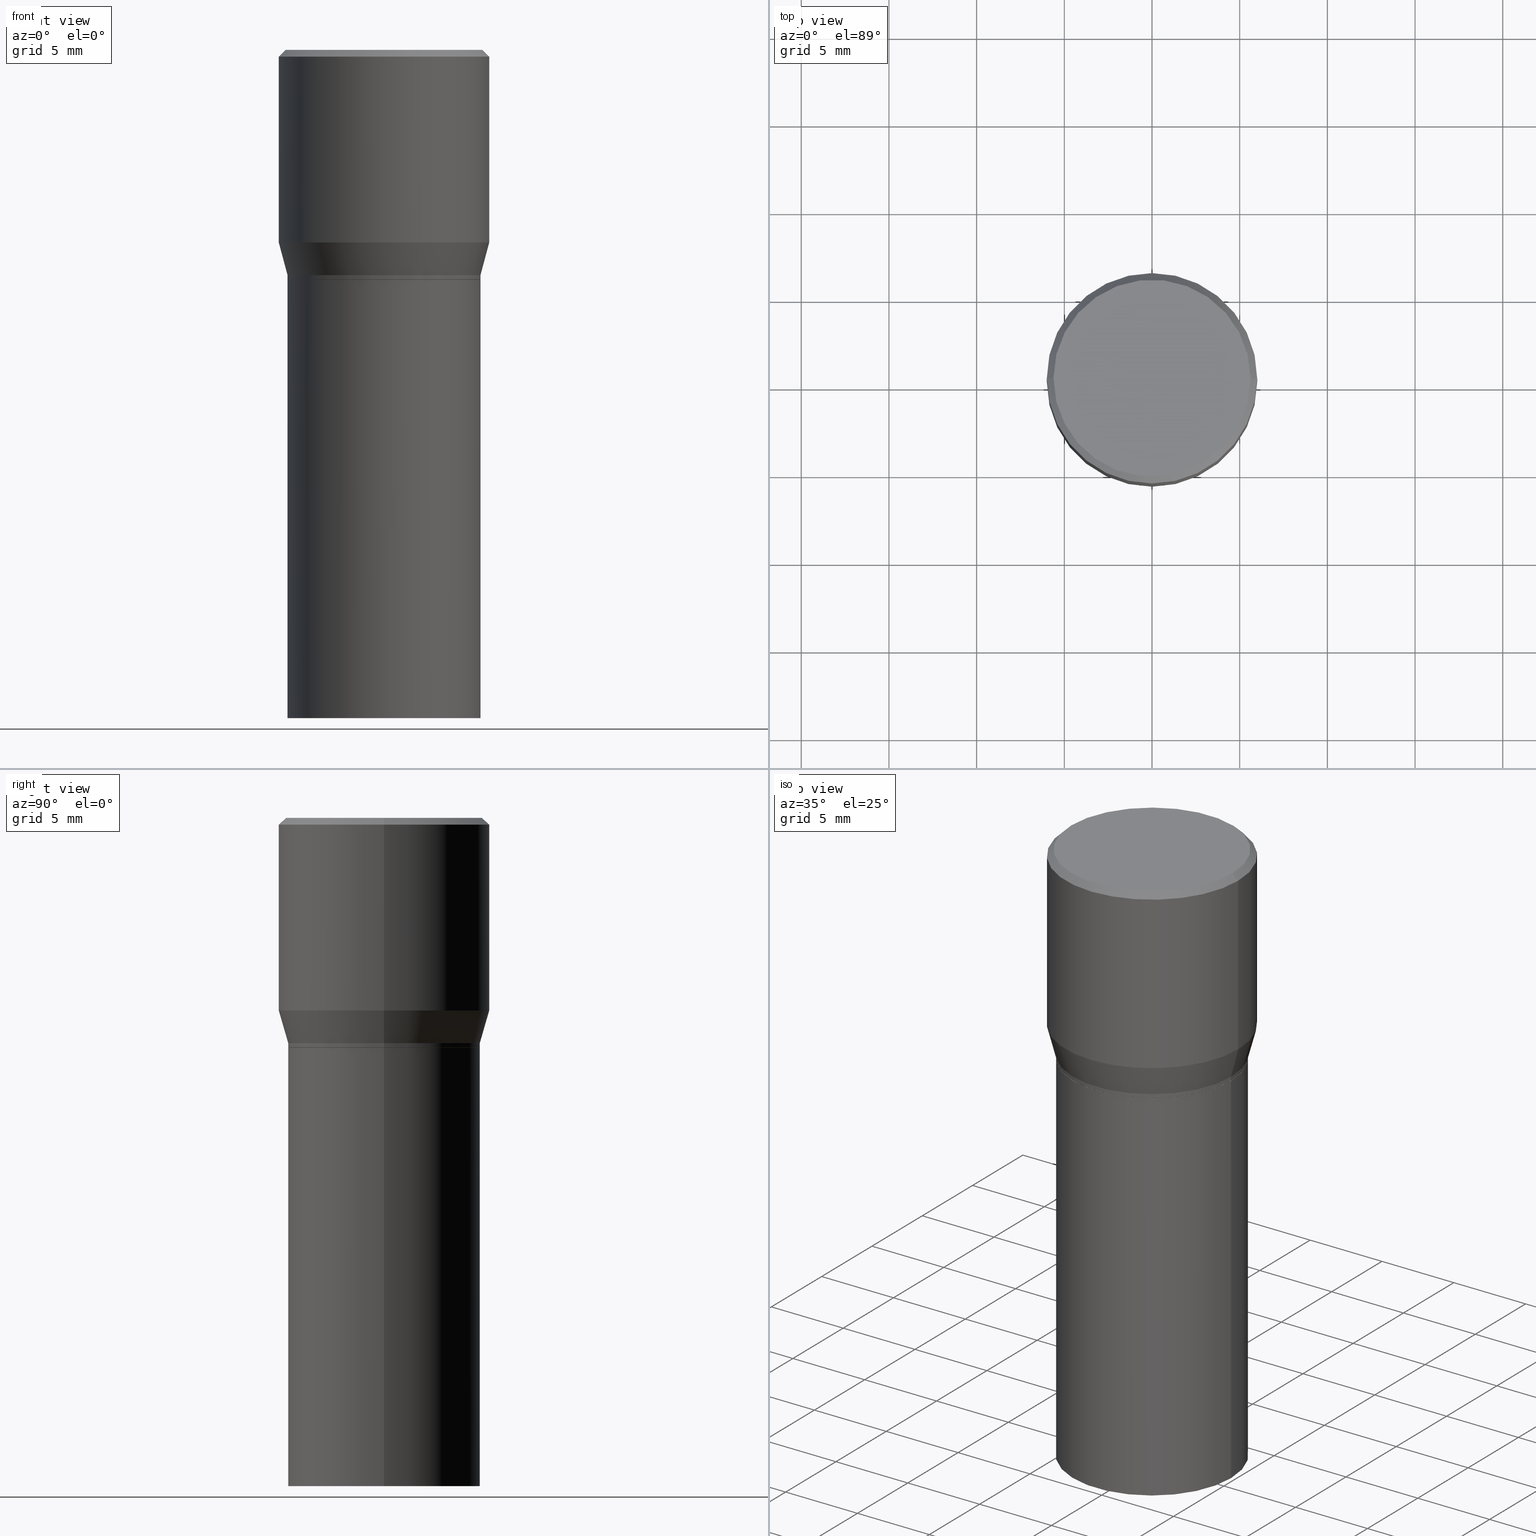
[diagram: canonical four-view strip — front | top / right | iso, engineering-drawing reading convention]
A machine part, canonical four-view strip (front | top / right | iso — engineering-drawing reading convention). The complete STEP part file that produces these views, byte-faithful:
ISO-10303-21;
HEADER;
FILE_DESCRIPTION (( 'STEP AP203' ),
    '1' );
FILE_NAME ('48536.STEP',
    '2024-03-12T19:31:03',
    ( '' ),
    ( '' ),
    'SwSTEP 2.0',
    'SolidWorks 2023',
    '' );
FILE_SCHEMA (( 'CONFIG_CONTROL_DESIGN' ));
ENDSEC;

DATA;
#1 = CARTESIAN_POINT ( 'NONE',  ( 1.544631344304202170E-15, 0.2212000000000000077, -7.488084343291421542E-16 ) ) ;
#2 = AXIS2_PLACEMENT_3D ( 'NONE', #158, #240, #56 ) ;
#3 = DATE_AND_TIME ( #423, #302 ) ;
#4 = PERSON_AND_ORGANIZATION ( #401, #276 ) ;
#5 = EDGE_CURVE ( 'NONE', #81, #404, #165, .T. ) ;
#6 = ORIENTED_EDGE ( 'NONE', *, *, #303, .T. ) ;
#7 = DIRECTION ( 'NONE',  ( 1.000000000000000000, -6.982962677686266711E-15, 4.876176775795936353E-29 ) ) ;
#8 = ADVANCED_FACE ( 'NONE', ( #192 ), #10, .T. ) ;
#9 = COORDINATED_UNIVERSAL_TIME_OFFSET ( 5, 0, .BEHIND. ) ;
#10 = CYLINDRICAL_SURFACE ( 'NONE', #314, 0.2165500000000000480 ) ;
#11 = CARTESIAN_POINT ( 'NONE',  ( -0.2165500000000000480, 1.538680294288497294E-15, -1.065195393794700063E-29 ) ) ;
#12 = DIRECTION ( 'NONE',  ( 0.2588190451025206840, 1.565188264969626504E-15, 0.9659258262890682012 ) ) ;
#13 = DIRECTION ( 'NONE',  ( -2.445468806185136597E-29, 3.491481338843145583E-15, 1.000000000000000000 ) ) ;
#14 = ORIENTED_EDGE ( 'NONE', *, *, #260, .T. ) ;
#15 = DIRECTION ( 'NONE',  ( 2.445468806185136597E-29, -3.491481338843145583E-15, -1.000000000000000000 ) ) ;
#16 = CC_DESIGN_SECURITY_CLASSIFICATION ( #364, ( #333 ) ) ;
#17 = DIRECTION ( 'NONE',  ( 1.000000000000000000, -6.982962677686267499E-15, 0.000000000000000000 ) ) ;
#18 = EDGE_CURVE ( 'NONE', #411, #199, #380, .T. ) ;
#19 = ORIENTED_EDGE ( 'NONE', *, *, #446, .T. ) ;
#20 = CARTESIAN_POINT ( 'NONE',  ( 0.2361999999999999933, -3.158970817530236235E-15, -0.4323652016312719004 ) ) ;
#21 = CARTESIAN_POINT ( 'NONE',  ( 0.2165500000000000203, -3.310971753624950675E-15, -0.5152000000000002133 ) ) ;
#22 = CARTESIAN_POINT ( 'NONE',  ( 0.2165500000000000480, -3.277802680905940530E-15, -0.5057000000000001494 ) ) ;
#23 = VERTEX_POINT ( 'NONE', #75 ) ;
#24 = CARTESIAN_POINT ( 'NONE',  ( 0.000000000000000000, 0.000000000000000000, 0.000000000000000000 ) ) ;
#25 = DIRECTION ( 'NONE',  ( -2.445468806185136597E-29, 3.491481338843145583E-15, 1.000000000000000000 ) ) ;
#26 = ORIENTED_EDGE ( 'NONE', *, *, #18, .T. ) ;
#27 = DIRECTION ( 'NONE',  ( 1.000000000000000000, -6.982962677686266711E-15, 0.000000000000000000 ) ) ;
#28 = DIMENSIONAL_EXPONENTS ( 1.000000000000000000, 0.000000000000000000, 0.000000000000000000, 0.000000000000000000, 0.000000000000000000, 0.000000000000000000, 0.000000000000000000 ) ;
#29 = AXIS2_PLACEMENT_3D ( 'NONE', #452, #135, #422 ) ;
#30 = DIRECTION ( 'NONE',  ( 1.000000000000000000, -6.982962677686267499E-15, 4.877828720335458505E-29 ) ) ;
#31 = DIRECTION ( 'NONE',  ( -2.445468806185136597E-29, 3.491481338843145583E-15, 1.000000000000000000 ) ) ;
#32 = APPROVAL ( #110, 'UNSPECIFIED' ) ;
#33 = DIRECTION ( 'NONE',  ( -2.445468806185136597E-29, 3.491481338843145583E-15, 1.000000000000000000 ) ) ;
#34 = CYLINDRICAL_SURFACE ( 'NONE', #238, 0.2165500000000000480 ) ;
#35 = AXIS2_PLACEMENT_3D ( 'NONE', #1, #255, #254 ) ;
#36 = PERSON_AND_ORGANIZATION ( #401, #276 ) ;
#37 = CC_DESIGN_APPROVAL ( #32, ( #228 ) ) ;
#38 = ADVANCED_FACE ( 'NONE', ( #215 ), #34, .T. ) ;
#39 = FACE_OUTER_BOUND ( 'NONE', #232, .T. ) ;
#40 = ADVANCED_FACE ( 'NONE', ( #430 ), #360, .T. ) ;
#41 = ADVANCED_FACE ( 'NONE', ( #39 ), #325, .F. ) ;
#42 = APPLICATION_PROTOCOL_DEFINITION ( 'international standard', 'config_control_design', 1994, #376 ) ;
#43 = ORIENTED_EDGE ( 'NONE', *, *, #210, .T. ) ;
#44 = AXIS2_PLACEMENT_3D ( 'NONE', #309, #239, #244 ) ;
#45 = CC_DESIGN_APPROVAL ( #149, ( #364 ) ) ;
#46 = ORIENTED_EDGE ( 'NONE', *, *, #416, .F. ) ;
#47 = EDGE_CURVE ( 'NONE', #419, #171, #405, .T. ) ;
#48 = CIRCLE ( 'NONE', #112, 0.2165500000000000203 ) ;
#49 = AXIS2_PLACEMENT_3D ( 'NONE', #234, #159, #164 ) ;
#50 = EDGE_CURVE ( 'NONE', #168, #296, #329, .T. ) ;
#51 = CARTESIAN_POINT ( 'NONE',  ( -1.149724336312568861E-45, 1.641501643732376549E-31, 4.701447564592356200E-17 ) ) ;
#52 = ORIENTED_EDGE ( 'NONE', *, *, #436, .T. ) ;
#53 = LINE ( 'NONE', #11, #143 ) ;
#54 = DIRECTION ( 'NONE',  ( -2.445468806185136877E-29, 3.491481338843145188E-15, 1.000000000000000000 ) ) ;
#55 = ORIENTED_EDGE ( 'NONE', *, *, #272, .F. ) ;
#56 = DIRECTION ( 'NONE',  ( 1.000000000000000000, -6.982962677686268288E-15, 0.000000000000000000 ) ) ;
#57 = MANIFOLD_SOLID_BREP ( 'Body-Move/Copy2[1]', #275 ) ;
#58 = CARTESIAN_POINT ( 'NONE',  ( 0.2165500000000000480, -3.277802680905940530E-15, -0.5057000000000001494 ) ) ;
#59 = ORIENTED_EDGE ( 'NONE', *, *, #47, .T. ) ;
#60 = ADVANCED_FACE ( 'NONE', ( #219 ), #362, .F. ) ;
#61 = PERSON_AND_ORGANIZATION ( #401, #276 ) ;
#62 = AXIS2_PLACEMENT_3D ( 'NONE', #191, #197, #236 ) ;
#63 = DIRECTION ( 'NONE',  ( -2.445468806185136877E-29, 3.491481338843145188E-15, 1.000000000000000000 ) ) ;
#64 = VERTEX_POINT ( 'NONE', #132 ) ;
#65 = ORIENTED_EDGE ( 'NONE', *, *, #412, .F. ) ;
#66 = EDGE_CURVE ( 'NONE', #199, #411, #418, .T. ) ;
#67 = DIRECTION ( 'NONE',  ( -2.445468806185136877E-29, 3.491481338843145188E-15, 1.000000000000000000 ) ) ;
#68 = CC_DESIGN_PERSON_AND_ORGANIZATION_ASSIGNMENT ( #73, #71, ( #333 ) ) ;
#69 = PERSON_AND_ORGANIZATION ( #401, #276 ) ;
#70 = CONICAL_SURFACE ( 'NONE', #180, 0.2160500000000000198, 0.7853981633974824739 ) ;
#71 = PERSON_AND_ORGANIZATION_ROLE ( 'design_supplier' ) ;
#72 = AXIS2_PLACEMENT_3D ( 'NONE', #226, #271, #374 ) ;
#73 = PERSON_AND_ORGANIZATION ( #401, #276 ) ;
#74 = SHAPE_DEFINITION_REPRESENTATION ( #187, #204 ) ;
#75 = CARTESIAN_POINT ( 'NONE',  ( -0.2165500000000000203, -1.980209173064567670E-15, -0.5157000000000001583 ) ) ;
#76 = DATE_AND_TIME ( #83, #434 ) ;
#77 = COORDINATED_UNIVERSAL_TIME_OFFSET ( 5, 0, .BEHIND. ) ;
#78 = DIRECTION ( 'NONE',  ( -1.000000000000000000, 6.982962677686266711E-15, 0.000000000000000000 ) ) ;
#79 = ORIENTED_EDGE ( 'NONE', *, *, #121, .F. ) ;
#80 = DIRECTION ( 'NONE',  ( 0.7071067811865715536, -2.468850131082509496E-15, 0.7071067811865232589 ) ) ;
#81 = VERTEX_POINT ( 'NONE', #346 ) ;
#82 = ORIENTED_EDGE ( 'NONE', *, *, #121, .T. ) ;
#83 = CALENDAR_DATE ( 2024, 12, 3 ) ;
#84 = CC_DESIGN_DATE_AND_TIME_ASSIGNMENT ( #3, #457, ( #364 ) ) ;
#85 = VECTOR ( 'NONE', #373, 39.37007874015748854 ) ;
#86 = ORIENTED_EDGE ( 'NONE', *, *, #446, .F. ) ;
#87 = APPROVAL_STATUS ( 'not_yet_approved' ) ;
#88 = EDGE_LOOP ( 'NONE', ( #59, #220, #340, #397 ) ) ;
#89 = CARTESIAN_POINT ( 'NONE',  ( 0.2361999999999999933, -1.701748004552143407E-15, -0.01499999999999999944 ) ) ;
#90 = CARTESIAN_POINT ( 'NONE',  ( -0.2165500000000000480, -2.912745497993258696E-17, -0.5057000000000001494 ) ) ;
#91 = EDGE_LOOP ( 'NONE', ( #65, #203, #237, #225 ) ) ;
#92 = ORIENTED_EDGE ( 'NONE', *, *, #321, .F. ) ;
#93 = FACE_OUTER_BOUND ( 'NONE', #448, .T. ) ;
#94 = DIRECTION ( 'NONE',  ( 0.7071067811865459074, -7.319954787623251312E-15, -0.7071067811865492381 ) ) ;
#95 = EDGE_LOOP ( 'NONE', ( #243, #268 ) ) ;
#96 = DIRECTION ( 'NONE',  ( -2.445468806185136597E-29, 3.491481338843145583E-15, 1.000000000000000000 ) ) ;
#97 = ORIENTED_EDGE ( 'NONE', *, *, #50, .F. ) ;
#98 = CIRCLE ( 'NONE', #263, 0.2165500000000000203 ) ;
#99 = CARTESIAN_POINT ( 'NONE',  ( 3.668203209277705088E-31, -5.237222008264718399E-17, -0.01499999999999999944 ) ) ;
#100 = APPROVAL_PERSON_ORGANIZATION ( #4, #331, #366 ) ;
#101 = LINE ( 'NONE', #195, #189 ) ;
#102 = EDGE_LOOP ( 'NONE', ( #408, #375, #378, #157 ) ) ;
#103 = ADVANCED_FACE ( 'NONE', ( #273 ), #70, .T. ) ;
#104 = PRODUCT_RELATED_PRODUCT_CATEGORY ( 'detail', '', ( #435 ) ) ;
#105 = FACE_OUTER_BOUND ( 'NONE', #450, .T. ) ;
#106 = CARTESIAN_POINT ( 'NONE',  ( 0.000000000000000000, 0.000000000000000000, 0.000000000000000000 ) ) ;
#107 = AXIS2_PLACEMENT_3D ( 'NONE', #138, #33, #177 ) ;
#108 = FACE_OUTER_BOUND ( 'NONE', #136, .T. ) ;
#109 = DIRECTION ( 'NONE',  ( -2.445468806185136877E-29, 3.491481338843145188E-15, 1.000000000000000000 ) ) ;
#110 = APPROVAL_STATUS ( 'not_yet_approved' ) ;
#111 = DIRECTION ( 'NONE',  ( 1.000000000000000000, -6.982962677686264344E-15, 0.000000000000000000 ) ) ;
#112 = AXIS2_PLACEMENT_3D ( 'NONE', #174, #31, #386 ) ;
#113 = AXIS2_PLACEMENT_3D ( 'NONE', #284, #432, #426 ) ;
#114 = DIRECTION ( 'NONE',  ( 1.000000000000000000, -6.982962677686266711E-15, 0.000000000000000000 ) ) ;
#115 = EDGE_LOOP ( 'NONE', ( #116, #336 ) ) ;
#116 = ORIENTED_EDGE ( 'NONE', *, *, #137, .F. ) ;
#117 = PERSON_AND_ORGANIZATION ( #401, #276 ) ;
#118 =( NAMED_UNIT ( * ) PLANE_ANGLE_UNIT ( ) SI_UNIT ( $, .RADIAN. ) );
#119 = VECTOR ( 'NONE', #12, 39.37007874015748854 ) ;
#120 = ORIENTED_EDGE ( 'NONE', *, *, #400, .F. ) ;
#121 = EDGE_CURVE ( 'NONE', #256, #344, #101, .T. ) ;
#122 = CARTESIAN_POINT ( 'NONE',  ( -0.2361999999999999933, 8.973183152936629998E-16, -0.01499999999999999944 ) ) ;
#123 = CYLINDRICAL_SURFACE ( 'NONE', #388, 0.2361999999999999933 ) ;
#124 = CARTESIAN_POINT ( 'NONE',  ( 1.261128263349675426E-29, -1.800556926441410962E-15, -0.5157000000000001583 ) ) ;
#125 = DIRECTION ( 'NONE',  ( -2.445468806185136597E-29, 3.491481338843145583E-15, 1.000000000000000000 ) ) ;
#126 = EDGE_CURVE ( 'NONE', #64, #23, #98, .T. ) ;
#127 = AXIS2_PLACEMENT_3D ( 'NONE', #139, #278, #78 ) ;
#128 = DIRECTION ( 'NONE',  ( -1.000000000000000000, 6.982962677686265922E-15, -4.876176775795935793E-29 ) ) ;
#129 = ORIENTED_EDGE ( 'NONE', *, *, #198, .F. ) ;
#130 = FACE_OUTER_BOUND ( 'NONE', #184, .T. ) ;
#131 = VERTEX_POINT ( 'NONE', #90 ) ;
#132 = CARTESIAN_POINT ( 'NONE',  ( 0.2165500000000000203, -3.312717494294371784E-15, -0.5157000000000001583 ) ) ;
#133 = ORIENTED_EDGE ( 'NONE', *, *, #308, .F. ) ;
#134 = VECTOR ( 'NONE', #451, 39.37007874015748143 ) ;
#135 = DIRECTION ( 'NONE',  ( -2.445468806185136597E-29, 3.491481338843145583E-15, 1.000000000000000000 ) ) ;
#136 = EDGE_LOOP ( 'NONE', ( #311, #313, #274, #92 ) ) ;
#137 = EDGE_CURVE ( 'NONE', #168, #81, #433, .T. ) ;
#138 = CARTESIAN_POINT ( 'NONE',  ( 1.261128263349675426E-29, -1.800556926441410962E-15, -0.5157000000000001583 ) ) ;
#139 = CARTESIAN_POINT ( 'NONE',  ( 3.668203209277705088E-31, -5.237222008264718399E-17, -0.01499999999999999944 ) ) ;
#140 = DIRECTION ( 'NONE',  ( -2.445468806185136597E-29, 3.491481338843145583E-15, 1.000000000000000000 ) ) ;
#141 = APPLICATION_PROTOCOL_DEFINITION ( 'international standard', 'config_control_design', 1994, #398 ) ;
#142 = CARTESIAN_POINT ( 'NONE',  ( -0.2212000000000000077, 1.570817454345525709E-15, 4.701447564591266586E-17 ) ) ;
#143 = VECTOR ( 'NONE', #67, 39.37007874015748143 ) ;
#144 = DIRECTION ( 'NONE',  ( 1.000000000000000000, -6.982962677686266711E-15, 0.000000000000000000 ) ) ;
#145 = DIRECTION ( 'NONE',  ( 1.000000000000000000, -6.982962677686266711E-15, 4.876176775795935793E-29 ) ) ;
#146 = ORIENTED_EDGE ( 'NONE', *, *, #321, .T. ) ;
#147 = LENGTH_MEASURE_WITH_UNIT ( LENGTH_MEASURE( 0.02539999999999999897 ), #253 );
#148 = VERTEX_POINT ( 'NONE', #58 ) ;
#149 = APPROVAL ( #188, 'UNSPECIFIED' ) ;
#150 = LOCAL_TIME ( 15, 31, 3.000000000000000000, #9 ) ;
#151 = EDGE_LOOP ( 'NONE', ( #227, #383, #86, #97 ) ) ;
#152 = CONICAL_SURFACE ( 'NONE', #107, 0.2160500000000000198, 0.7853981633974824739 ) ;
#153 = AXIS2_PLACEMENT_3D ( 'NONE', #377, #156, #128 ) ;
#154 = AXIS2_PLACEMENT_3D ( 'NONE', #179, #431, #349 ) ;
#155 = LINE ( 'NONE', #205, #361 ) ;
#156 = DIRECTION ( 'NONE',  ( 2.438088387897960049E-29, -3.491481338843145188E-15, -1.000000000000000000 ) ) ;
#157 = ORIENTED_EDGE ( 'NONE', *, *, #316, .F. ) ;
#158 = CARTESIAN_POINT ( 'NONE',  ( 1.057335613469222325E-29, -1.509595033060739709E-15, -0.4323652016312719004 ) ) ;
#159 = DIRECTION ( 'NONE',  ( -2.445468806185136597E-29, 3.491481338843145583E-15, 1.000000000000000000 ) ) ;
#160 = EDGE_CURVE ( 'NONE', #261, #344, #363, .T. ) ;
#161 = EDGE_LOOP ( 'NONE', ( #299, #14 ) ) ;
#162 = AXIS2_PLACEMENT_3D ( 'NONE', #351, #211, #30 ) ;
#163 = LOCAL_TIME ( 15, 31, 3.000000000000000000, #77 ) ;
#164 = DIRECTION ( 'NONE',  ( 1.000000000000000000, -6.982962677686266711E-15, 4.876176775795935793E-29 ) ) ;
#165 = LINE ( 'NONE', #301, #85 ) ;
#166 = ADVANCED_FACE ( 'NONE', ( #267 ), #447, .F. ) ;
#167 = DIRECTION ( 'NONE',  ( -2.445468806185136597E-29, 3.491481338843145583E-15, 1.000000000000000000 ) ) ;
#168 = VERTEX_POINT ( 'NONE', #354 ) ;
#169 = CARTESIAN_POINT ( 'NONE',  ( -0.2165500000000000203, 1.538680294288497096E-15, -1.065195393794699923E-29 ) ) ;
#170 = DIRECTION ( 'NONE',  ( -2.438088387897960049E-29, 3.491481338843145188E-15, 1.000000000000000000 ) ) ;
#171 = VERTEX_POINT ( 'NONE', #208 ) ;
#172 = CIRCLE ( 'NONE', #29, 0.2361999999999999933 ) ;
#173 =( GEOMETRIC_REPRESENTATION_CONTEXT ( 3 ) GLOBAL_UNCERTAINTY_ASSIGNED_CONTEXT ( ( #393 ) ) GLOBAL_UNIT_ASSIGNED_CONTEXT ( ( #334, #118, #291 ) ) REPRESENTATION_CONTEXT ( 'NONE', 'WORKASPACE' ) );
#174 = CARTESIAN_POINT ( 'NONE',  ( 3.668203209277704895E-29, -5.237222008264718177E-15, -1.500000000000000222 ) ) ;
#175 = DIRECTION ( 'NONE',  ( -2.445468806185136597E-29, 3.491481338843145583E-15, 1.000000000000000000 ) ) ;
#176 = CARTESIAN_POINT ( 'NONE',  ( -0.2361999999999999933, 1.597003564386848854E-15, -0.01499999999999999944 ) ) ;
#177 = DIRECTION ( 'NONE',  ( 1.000000000000000000, -6.982962677686267499E-15, 0.000000000000000000 ) ) ;
#178 = SECURITY_CLASSIFICATION_LEVEL ( 'unclassified' ) ;
#179 = CARTESIAN_POINT ( 'NONE',  ( 0.000000000000000000, 0.000000000000000000, 0.000000000000000000 ) ) ;
#180 = AXIS2_PLACEMENT_3D ( 'NONE', #379, #442, #415 ) ;
#181 = VERTEX_POINT ( 'NONE', #391 ) ;
#182 = ADVANCED_FACE ( 'NONE', ( #280 ), #319, .T. ) ;
#183 = ORIENTED_EDGE ( 'NONE', *, *, #295, .T. ) ;
#184 = EDGE_LOOP ( 'NONE', ( #6, #183, #306, #79 ) ) ;
#185 = AXIS2_PLACEMENT_3D ( 'NONE', #245, #461, #277 ) ;
#186 = AXIS2_PLACEMENT_3D ( 'NONE', #318, #140, #281 ) ;
#187 = PRODUCT_DEFINITION_SHAPE ( 'NONE', 'NONE',  #228 ) ;
#188 = APPROVAL_STATUS ( 'not_yet_approved' ) ;
#189 = VECTOR ( 'NONE', #63, 39.37007874015748143 ) ;
#190 = VECTOR ( 'NONE', #109, 39.37007874015748143 ) ;
#191 = CARTESIAN_POINT ( 'NONE',  ( 1.236673575287824021E-29, -1.765642113052979313E-15, -0.5057000000000001494 ) ) ;
#192 = FACE_OUTER_BOUND ( 'NONE', #350, .T. ) ;
#193 = LINE ( 'NONE', #406, #353 ) ;
#194 = EDGE_CURVE ( 'NONE', #171, #419, #48, .T. ) ;
#195 = CARTESIAN_POINT ( 'NONE',  ( 0.2361999999999999933, -1.649375784469496131E-15, 1.151752954443000088E-29 ) ) ;
#196 = ORIENTED_EDGE ( 'NONE', *, *, #160, .F. ) ;
#197 = DIRECTION ( 'NONE',  ( -2.445468806185136597E-29, 3.491481338843145583E-15, 1.000000000000000000 ) ) ;
#198 = EDGE_CURVE ( 'NONE', #199, #261, #247, .T. ) ;
#199 = VERTEX_POINT ( 'NONE', #142 ) ;
#200 = MANIFOLD_SOLID_BREP ( 'Body-Move/Copy2[2]', #201 ) ;
#201 = CLOSED_SHELL ( 'NONE', ( #8, #103, #417, #339, #229, #287, #409, #40, #41, #166, #440, #38 ) ) ;
#202 = CIRCLE ( 'NONE', #62, 0.2165500000000000480 ) ;
#203 = ORIENTED_EDGE ( 'NONE', *, *, #66, .F. ) ;
#204 = ADVANCED_BREP_SHAPE_REPRESENTATION ( '48536', ( #57, #200, #154 ), #173 ) ;
#205 = CARTESIAN_POINT ( 'NONE',  ( 0.2165500000000000480, -1.512160567852961414E-15, 1.055936080798610176E-29 ) ) ;
#206 = ORIENTED_EDGE ( 'NONE', *, *, #359, .F. ) ;
#207 = ADVANCED_FACE ( 'NONE', ( #283 ), #213, .F. ) ;
#208 = CARTESIAN_POINT ( 'NONE',  ( -0.2165500000000000203, -1.980209173064567670E-15, -1.500000000000000222 ) ) ;
#209 = CONICAL_SURFACE ( 'NONE', #420, 0.2165500000000000480, 0.2617993877991494078 ) ;
#210 = EDGE_CURVE ( 'NONE', #344, #261, #172, .T. ) ;
#211 = DIRECTION ( 'NONE',  ( -2.445468806185136597E-29, 3.491481338843145583E-15, 1.000000000000000000 ) ) ;
#212 = CARTESIAN_POINT ( 'NONE',  ( 0.2165500000000000203, -6.749382576117678999E-15, -1.500000000000000222 ) ) ;
#213 = PLANE ( 'NONE',  #370 ) ;
#214 = CARTESIAN_POINT ( 'NONE',  ( -0.2361999999999999933, 1.678301941865356591E-15, -1.161852468318208757E-29 ) ) ;
#215 = FACE_OUTER_BOUND ( 'NONE', #348, .T. ) ;
#216 = AXIS2_PLACEMENT_3D ( 'NONE', #124, #231, #17 ) ;
#217 = CONICAL_SURFACE ( 'NONE', #293, 0.2361999999999999933, 0.7853981633974459475 ) ;
#218 = COORDINATED_UNIVERSAL_TIME_OFFSET ( 5, 0, .BEHIND. ) ;
#219 = FACE_OUTER_BOUND ( 'NONE', #161, .T. ) ;
#220 = ORIENTED_EDGE ( 'NONE', *, *, #416, .T. ) ;
#221 = EDGE_LOOP ( 'NONE', ( #453, #441, #82, #196 ) ) ;
#222 = CONICAL_SURFACE ( 'NONE', #343, 0.2165500000000000480, 0.2617993877991494078 ) ;
#223 = APPROVAL_PERSON_ORGANIZATION ( #61, #149, #394 ) ;
#224 = ORIENTED_EDGE ( 'NONE', *, *, #303, .F. ) ;
#225 = ORIENTED_EDGE ( 'NONE', *, *, #160, .T. ) ;
#226 = CARTESIAN_POINT ( 'NONE',  ( 1.259905528946582905E-29, -1.798811185771989458E-15, -0.5152000000000002133 ) ) ;
#227 = ORIENTED_EDGE ( 'NONE', *, *, #137, .T. ) ;
#228 = PRODUCT_DEFINITION ( 'UNKNOWN', '', #333, #327 ) ;
#229 = ADVANCED_FACE ( 'NONE', ( #93 ), #222, .T. ) ;
#230 = DIRECTION ( 'NONE',  ( -2.445468806185136877E-29, 3.491481338843145188E-15, 1.000000000000000000 ) ) ;
#231 = DIRECTION ( 'NONE',  ( -2.445468806185136597E-29, 3.491481338843145583E-15, 1.000000000000000000 ) ) ;
#232 = EDGE_LOOP ( 'NONE', ( #290, #26 ) ) ;
#233 = LINE ( 'NONE', #169, #134 ) ;
#234 = CARTESIAN_POINT ( 'NONE',  ( 0.000000000000000000, 0.000000000000000000, 0.000000000000000000 ) ) ;
#235 = ORIENTED_EDGE ( 'NONE', *, *, #365, .T. ) ;
#236 = DIRECTION ( 'NONE',  ( 1.000000000000000000, -6.982962677686266711E-15, 0.000000000000000000 ) ) ;
#237 = ORIENTED_EDGE ( 'NONE', *, *, #198, .T. ) ;
#238 = AXIS2_PLACEMENT_3D ( 'NONE', #466, #175, #145 ) ;
#239 = DIRECTION ( 'NONE',  ( -2.445468806185136597E-29, 3.491481338843145583E-15, 1.000000000000000000 ) ) ;
#240 = DIRECTION ( 'NONE',  ( -2.445468806185136597E-29, 3.491481338843145583E-15, 1.000000000000000000 ) ) ;
#241 = DIRECTION ( 'NONE',  ( -2.445468806185136597E-29, 3.491481338843145583E-15, 1.000000000000000000 ) ) ;
#242 = COORDINATED_UNIVERSAL_TIME_OFFSET ( 5, 0, .BEHIND. ) ;
#243 = ORIENTED_EDGE ( 'NONE', *, *, #47, .F. ) ;
#244 = DIRECTION ( 'NONE',  ( 1.000000000000000000, -6.982962677686265133E-15, 0.000000000000000000 ) ) ;
#245 = CARTESIAN_POINT ( 'NONE',  ( 1.261128263349675426E-29, -1.800556926441410962E-15, -0.5157000000000001583 ) ) ;
#246 = VECTOR ( 'NONE', #390, 39.37007874015748143 ) ;
#247 = LINE ( 'NONE', #176, #246 ) ;
#248 = CARTESIAN_POINT ( 'NONE',  ( 1.236673575287824021E-29, -1.765642113052979313E-15, -0.5057000000000001494 ) ) ;
#249 = PERSON_AND_ORGANIZATION ( #401, #276 ) ;
#250 = AXIS2_PLACEMENT_3D ( 'NONE', #51, #342, #439 ) ;
#251 = CIRCLE ( 'NONE', #454, 0.2361999999999999933 ) ;
#252 = CARTESIAN_POINT ( 'NONE',  ( 0.2160500000000000198, -3.309226012955529172E-15, -0.5157000000000001583 ) ) ;
#253 =( LENGTH_UNIT ( ) NAMED_UNIT ( * ) SI_UNIT ( $, .METRE. ) );
#254 = DIRECTION ( 'NONE',  ( -1.000000000000000000, 6.982962677686265922E-15, -4.876176775795935793E-29 ) ) ;
#255 = DIRECTION ( 'NONE',  ( 2.438088387897960049E-29, -3.491481338843145188E-15, -1.000000000000000000 ) ) ;
#256 = VERTEX_POINT ( 'NONE', #20 ) ;
#257 = CARTESIAN_POINT ( 'NONE',  ( 3.668203209277704895E-29, -5.237222008264718177E-15, -1.500000000000000222 ) ) ;
#258 = CALENDAR_DATE ( 2024, 12, 3 ) ;
#259 = FACE_OUTER_BOUND ( 'NONE', #221, .T. ) ;
#260 = EDGE_CURVE ( 'NONE', #23, #64, #288, .T. ) ;
#261 = VERTEX_POINT ( 'NONE', #122 ) ;
#262 = DIRECTION ( 'NONE',  ( 1.000000000000000000, -6.982962677686265133E-15, 0.000000000000000000 ) ) ;
#263 = AXIS2_PLACEMENT_3D ( 'NONE', #298, #241, #262 ) ;
#264 = DIRECTION ( 'NONE',  ( 1.000000000000000000, -6.982962677686266711E-15, 4.876176775795935793E-29 ) ) ;
#265 = CIRCLE ( 'NONE', #72, 0.2165500000000000203 ) ;
#266 = LINE ( 'NONE', #410, #382 ) ;
#267 = FACE_OUTER_BOUND ( 'NONE', #115, .T. ) ;
#268 = ORIENTED_EDGE ( 'NONE', *, *, #194, .F. ) ;
#269 = CYLINDRICAL_SURFACE ( 'NONE', #323, 0.2361999999999999933 ) ;
#270 = ORIENTED_EDGE ( 'NONE', *, *, #412, .T. ) ;
#271 = DIRECTION ( 'NONE',  ( -2.445468806185136597E-29, 3.491481338843145583E-15, 1.000000000000000000 ) ) ;
#272 = EDGE_CURVE ( 'NONE', #404, #131, #53, .T. ) ;
#273 = FACE_OUTER_BOUND ( 'NONE', #151, .T. ) ;
#274 = ORIENTED_EDGE ( 'NONE', *, *, #50, .T. ) ;
#275 = CLOSED_SHELL ( 'NONE', ( #182, #207, #279, #60 ) ) ;
#276 = ORGANIZATION ( 'UNSPECIFIED', 'UNSPECIFIED', '' ) ;
#277 = DIRECTION ( 'NONE',  ( 1.000000000000000000, -6.982962677686265922E-15, 4.876176775795935793E-29 ) ) ;
#278 = DIRECTION ( 'NONE',  ( 2.445468806185136597E-29, -3.491481338843145583E-15, -1.000000000000000000 ) ) ;
#279 = ADVANCED_FACE ( 'NONE', ( #105 ), #305, .T. ) ;
#280 = FACE_OUTER_BOUND ( 'NONE', #88, .T. ) ;
#281 = DIRECTION ( 'NONE',  ( 1.000000000000000000, -6.982962677686266711E-15, 0.000000000000000000 ) ) ;
#282 = COORDINATED_UNIVERSAL_TIME_OFFSET ( 5, 0, .BEHIND. ) ;
#283 = FACE_OUTER_BOUND ( 'NONE', #95, .T. ) ;
#284 = CARTESIAN_POINT ( 'NONE',  ( 1.261128263349675426E-29, -1.800556926441410962E-15, -0.5157000000000001583 ) ) ;
#285 = ORIENTED_EDGE ( 'NONE', *, *, #272, .T. ) ;
#286 = DATE_AND_TIME ( #460, #150 ) ;
#287 = ADVANCED_FACE ( 'NONE', ( #347 ), #209, .T. ) ;
#288 = CIRCLE ( 'NONE', #44, 0.2165500000000000203 ) ;
#289 = CIRCLE ( 'NONE', #186, 0.2165500000000000203 ) ;
#290 = ORIENTED_EDGE ( 'NONE', *, *, #66, .T. ) ;
#291 =( NAMED_UNIT ( * ) SI_UNIT ( $, .STERADIAN. ) SOLID_ANGLE_UNIT ( ) );
#292 = MECHANICAL_CONTEXT ( 'NONE', #376, 'mechanical' ) ;
#293 = AXIS2_PLACEMENT_3D ( 'NONE', #99, #15, #304 ) ;
#294 = CC_DESIGN_PERSON_AND_ORGANIZATION_ASSIGNMENT ( #69, #317, ( #333 ) ) ;
#295 = EDGE_CURVE ( 'NONE', #181, #261, #459, .T. ) ;
#296 = VERTEX_POINT ( 'NONE', #21 ) ;
#297 = LINE ( 'NONE', #22, #119 ) ;
#298 = CARTESIAN_POINT ( 'NONE',  ( 1.261128263349675426E-29, -1.800556926441410962E-15, -0.5157000000000001583 ) ) ;
#299 = ORIENTED_EDGE ( 'NONE', *, *, #126, .T. ) ;
#300 = DIRECTION ( 'NONE',  ( 1.000000000000000000, -6.982962677686266711E-15, 0.000000000000000000 ) ) ;
#301 = CARTESIAN_POINT ( 'NONE',  ( -0.2160500000000000198, -2.654293458317144186E-16, -0.5157000000000001583 ) ) ;
#302 = LOCAL_TIME ( 15, 31, 3.000000000000000000, #242 ) ;
#303 = EDGE_CURVE ( 'NONE', #256, #181, #251, .T. ) ;
#304 = DIRECTION ( 'NONE',  ( -1.000000000000000000, 6.982962677686266711E-15, 0.000000000000000000 ) ) ;
#305 = CYLINDRICAL_SURFACE ( 'NONE', #49, 0.2165500000000000203 ) ;
#306 = ORIENTED_EDGE ( 'NONE', *, *, #210, .F. ) ;
#307 = ORIENTED_EDGE ( 'NONE', *, *, #18, .F. ) ;
#308 = EDGE_CURVE ( 'NONE', #296, #148, #155, .T. ) ;
#309 = CARTESIAN_POINT ( 'NONE',  ( 1.261128263349675426E-29, -1.800556926441410962E-15, -0.5157000000000001583 ) ) ;
#310 = DIRECTION ( 'NONE',  ( -2.445468806185136597E-29, 3.491481338843145583E-15, 1.000000000000000000 ) ) ;
#311 = ORIENTED_EDGE ( 'NONE', *, *, #5, .F. ) ;
#312 = DIRECTION ( 'NONE',  ( 1.000000000000000000, -6.982962677686265922E-15, 4.876176775795935793E-29 ) ) ;
#313 = ORIENTED_EDGE ( 'NONE', *, *, #425, .T. ) ;
#314 = AXIS2_PLACEMENT_3D ( 'NONE', #443, #125, #264 ) ;
#315 = CC_DESIGN_DATE_AND_TIME_ASSIGNMENT ( #368, #402, ( #228 ) ) ;
#316 = EDGE_CURVE ( 'NONE', #181, #256, #428, .T. ) ;
#317 = PERSON_AND_ORGANIZATION_ROLE ( 'creator' ) ;
#318 = CARTESIAN_POINT ( 'NONE',  ( 1.259905528946582905E-29, -1.798811185771989458E-15, -0.5152000000000002133 ) ) ;
#319 = CYLINDRICAL_SURFACE ( 'NONE', #395, 0.2165500000000000203 ) ;
#320 = CC_DESIGN_PERSON_AND_ORGANIZATION_ASSIGNMENT ( #117, #324, ( #228 ) ) ;
#321 = EDGE_CURVE ( 'NONE', #404, #296, #265, .T. ) ;
#322 = AXIS2_PLACEMENT_3D ( 'NONE', #257, #332, #111 ) ;
#323 = AXIS2_PLACEMENT_3D ( 'NONE', #337, #96, #7 ) ;
#324 = PERSON_AND_ORGANIZATION_ROLE ( 'creator' ) ;
#325 = PLANE ( 'NONE',  #35 ) ;
#326 = ORIENTED_EDGE ( 'NONE', *, *, #308, .T. ) ;
#327 = DESIGN_CONTEXT ( 'detailed design', #398, 'design' ) ;
#328 = AXIS2_PLACEMENT_3D ( 'NONE', #338, #13, #300 ) ;
#329 = LINE ( 'NONE', #252, #427 ) ;
#330 = CC_DESIGN_PERSON_AND_ORGANIZATION_ASSIGNMENT ( #462, #358, ( #364 ) ) ;
#331 = APPROVAL ( #87, 'UNSPECIFIED' ) ;
#332 = DIRECTION ( 'NONE',  ( -2.445468806185136597E-29, 3.491481338843145583E-15, 1.000000000000000000 ) ) ;
#333 = PRODUCT_DEFINITION_FORMATION_WITH_SPECIFIED_SOURCE ( 'ANY', '', #435, .NOT_KNOWN. ) ;
#334 =( CONVERSION_BASED_UNIT ( 'INCH', #147 ) LENGTH_UNIT ( ) NAMED_UNIT ( #28 ) );
#335 = CARTESIAN_POINT ( 'NONE',  ( -0.2165500000000000203, -2.601308914834925589E-16, -0.5152000000000002133 ) ) ;
#336 = ORIENTED_EDGE ( 'NONE', *, *, #425, .F. ) ;
#337 = CARTESIAN_POINT ( 'NONE',  ( 0.000000000000000000, 0.000000000000000000, 0.000000000000000000 ) ) ;
#338 = CARTESIAN_POINT ( 'NONE',  ( 3.668203209277705088E-31, -5.237222008264718399E-17, -0.01499999999999999944 ) ) ;
#339 = ADVANCED_FACE ( 'NONE', ( #130 ), #269, .T. ) ;
#340 = ORIENTED_EDGE ( 'NONE', *, *, #126, .F. ) ;
#341 = FACE_OUTER_BOUND ( 'NONE', #445, .T. ) ;
#342 = DIRECTION ( 'NONE',  ( -2.445468806185136597E-29, 3.491481338843145583E-15, 1.000000000000000000 ) ) ;
#343 = AXIS2_PLACEMENT_3D ( 'NONE', #421, #414, #27 ) ;
#344 = VERTEX_POINT ( 'NONE', #89 ) ;
#345 = LOCAL_TIME ( 15, 31, 3.000000000000000000, #218 ) ;
#346 = CARTESIAN_POINT ( 'NONE',  ( -0.2160500000000000198, -2.627801186576033655E-16, -0.5157000000000001583 ) ) ;
#347 = FACE_OUTER_BOUND ( 'NONE', #102, .T. ) ;
#348 = EDGE_LOOP ( 'NONE', ( #55, #146, #326, #206 ) ) ;
#349 = DIRECTION ( 'NONE',  ( 1.000000000000000000, 0.000000000000000000, 0.000000000000000000 ) ) ;
#350 = EDGE_LOOP ( 'NONE', ( #19, #285, #413, #133 ) ) ;
#351 = CARTESIAN_POINT ( 'NONE',  ( -1.149724336312568861E-45, 1.641501643732376549E-31, 4.701447564592356200E-17 ) ) ;
#352 = APPROVAL_PERSON_ORGANIZATION ( #36, #32, #456 ) ;
#353 = VECTOR ( 'NONE', #230, 39.37007874015748143 ) ;
#354 = CARTESIAN_POINT ( 'NONE',  ( 0.2160500000000000198, -3.309226012955529172E-15, -0.5157000000000001583 ) ) ;
#355 = DIRECTION ( 'NONE',  ( 1.000000000000000000, -6.982962677686266711E-15, 4.876176775795935793E-29 ) ) ;
#356 = CARTESIAN_POINT ( 'NONE',  ( 3.576687321579069994E-29, -5.368277968210015545E-15, -1.500000000000000222 ) ) ;
#357 = DIRECTION ( 'NONE',  ( -2.445468806185136597E-29, 3.491481338843145583E-15, 1.000000000000000000 ) ) ;
#358 = PERSON_AND_ORGANIZATION_ROLE ( 'classification_officer' ) ;
#359 = EDGE_CURVE ( 'NONE', #131, #148, #202, .T. ) ;
#360 = CONICAL_SURFACE ( 'NONE', #127, 0.2361999999999999933, 0.7853981633974459475 ) ;
#361 = VECTOR ( 'NONE', #54, 39.37007874015748143 ) ;
#362 = PLANE ( 'NONE',  #153 ) ;
#363 = CIRCLE ( 'NONE', #328, 0.2361999999999999933 ) ;
#364 = SECURITY_CLASSIFICATION ( '', '', #178 ) ;
#365 = EDGE_CURVE ( 'NONE', #419, #64, #193, .T. ) ;
#366 = APPROVAL_ROLE ( '' ) ;
#367 = ORIENTED_EDGE ( 'NONE', *, *, #465, .T. ) ;
#368 = DATE_AND_TIME ( #372, #345 ) ;
#369 = ORIENTED_EDGE ( 'NONE', *, *, #194, .T. ) ;
#370 = AXIS2_PLACEMENT_3D ( 'NONE', #356, #170, #312 ) ;
#371 = AXIS2_PLACEMENT_3D ( 'NONE', #399, #357, #114 ) ;
#372 = CALENDAR_DATE ( 2024, 12, 3 ) ;
#373 = DIRECTION ( 'NONE',  ( -0.7071067811865715536, 7.493145998870439357E-15, 0.7071067811865232589 ) ) ;
#374 = DIRECTION ( 'NONE',  ( 1.000000000000000000, -6.982962677686266711E-15, 0.000000000000000000 ) ) ;
#375 = ORIENTED_EDGE ( 'NONE', *, *, #359, .T. ) ;
#376 = APPLICATION_CONTEXT ( 'configuration controlled 3d designs of mechanical parts and assemblies' ) ;
#377 = CARTESIAN_POINT ( 'NONE',  ( 1.512160567852973444E-15, 0.2165499999999981884, -0.5157000000000009354 ) ) ;
#378 = ORIENTED_EDGE ( 'NONE', *, *, #400, .T. ) ;
#379 = CARTESIAN_POINT ( 'NONE',  ( 1.261128263349675426E-29, -1.800556926441410962E-15, -0.5157000000000001583 ) ) ;
#380 = CIRCLE ( 'NONE', #162, 0.2212000000000000077 ) ;
#381 = ORIENTED_EDGE ( 'NONE', *, *, #260, .F. ) ;
#382 = VECTOR ( 'NONE', #94, 39.37007874015748143 ) ;
#383 = ORIENTED_EDGE ( 'NONE', *, *, #5, .T. ) ;
#384 = CC_DESIGN_PERSON_AND_ORGANIZATION_ASSIGNMENT ( #249, #463, ( #435 ) ) ;
#385 = APPROVAL_DATE_TIME ( #286, #331 ) ;
#386 = DIRECTION ( 'NONE',  ( 1.000000000000000000, -6.982962677686264344E-15, 0.000000000000000000 ) ) ;
#387 = DIRECTION ( 'NONE',  ( -2.445468806185136597E-29, 3.491481338843145583E-15, 1.000000000000000000 ) ) ;
#388 = AXIS2_PLACEMENT_3D ( 'NONE', #24, #167, #449 ) ;
#389 = APPROVAL_DATE_TIME ( #424, #149 ) ;
#390 = DIRECTION ( 'NONE',  ( -0.7071067811865459074, 2.468850131082239706E-15, -0.7071067811865492381 ) ) ;
#391 = CARTESIAN_POINT ( 'NONE',  ( -0.2361999999999999933, 1.687069088046168326E-16, -0.4323652016312719004 ) ) ;
#392 = CARTESIAN_POINT ( 'NONE',  ( 1.057335613469222325E-29, -1.509595033060739709E-15, -0.4323652016312719004 ) ) ;
#393 = UNCERTAINTY_MEASURE_WITH_UNIT (LENGTH_MEASURE( 1.000000000000000082E-05 ), #334, 'distance_accuracy_value', 'NONE');
#394 = APPROVAL_ROLE ( '' ) ;
#395 = AXIS2_PLACEMENT_3D ( 'NONE', #106, #25, #355 ) ;
#396 = CIRCLE ( 'NONE', #371, 0.2165500000000000480 ) ;
#397 = ORIENTED_EDGE ( 'NONE', *, *, #365, .F. ) ;
#398 = APPLICATION_CONTEXT ( 'configuration controlled 3d designs of mechanical parts and assemblies' ) ;
#399 = CARTESIAN_POINT ( 'NONE',  ( 1.236673575287824021E-29, -1.765642113052979313E-15, -0.5057000000000001494 ) ) ;
#400 = EDGE_CURVE ( 'NONE', #148, #256, #297, .T. ) ;
#401 = PERSON ( 'UNSPECIFIED', 'UNSPECIFIED', 'UNSPECIFIED', ('UNSPECIFIED'), ('UNSPECIFIED'), ('UNSPECIFIED') ) ;
#402 = DATE_TIME_ROLE ( 'creation_date' ) ;
#403 = DIRECTION ( 'NONE',  ( 1.000000000000000000, -6.982962677686268288E-15, 0.000000000000000000 ) ) ;
#404 = VERTEX_POINT ( 'NONE', #335 ) ;
#405 = CIRCLE ( 'NONE', #322, 0.2165500000000000203 ) ;
#406 = CARTESIAN_POINT ( 'NONE',  ( 0.2165500000000000203, -1.512160567852961217E-15, 1.055936080798610036E-29 ) ) ;
#407 = CC_DESIGN_APPROVAL ( #331, ( #333 ) ) ;
#408 = ORIENTED_EDGE ( 'NONE', *, *, #436, .F. ) ;
#409 = ADVANCED_FACE ( 'NONE', ( #259 ), #123, .T. ) ;
#410 = CARTESIAN_POINT ( 'NONE',  ( 0.2361999999999999933, -1.672821847156282947E-15, -0.01499999999999999944 ) ) ;
#411 = VERTEX_POINT ( 'NONE', #444 ) ;
#412 = EDGE_CURVE ( 'NONE', #411, #344, #266, .T. ) ;
#413 = ORIENTED_EDGE ( 'NONE', *, *, #465, .F. ) ;
#414 = DIRECTION ( 'NONE',  ( -2.445468806185136597E-29, 3.491481338843145583E-15, 1.000000000000000000 ) ) ;
#415 = DIRECTION ( 'NONE',  ( 1.000000000000000000, -6.982962677686267499E-15, 0.000000000000000000 ) ) ;
#416 = EDGE_CURVE ( 'NONE', #171, #23, #233, .T. ) ;
#417 = ADVANCED_FACE ( 'NONE', ( #341 ), #217, .T. ) ;
#418 = CIRCLE ( 'NONE', #250, 0.2212000000000000077 ) ;
#419 = VERTEX_POINT ( 'NONE', #212 ) ;
#420 = AXIS2_PLACEMENT_3D ( 'NONE', #248, #387, #144 ) ;
#421 = CARTESIAN_POINT ( 'NONE',  ( 1.236673575287824021E-29, -1.765642113052979313E-15, -0.5057000000000001494 ) ) ;
#422 = DIRECTION ( 'NONE',  ( 1.000000000000000000, -6.982962677686266711E-15, 0.000000000000000000 ) ) ;
#423 = CALENDAR_DATE ( 2024, 12, 3 ) ;
#424 = DATE_AND_TIME ( #258, #163 ) ;
#425 = EDGE_CURVE ( 'NONE', #81, #168, #438, .T. ) ;
#426 = DIRECTION ( 'NONE',  ( 1.000000000000000000, -6.982962677686267499E-15, 0.000000000000000000 ) ) ;
#427 = VECTOR ( 'NONE', #80, 39.37007874015748854 ) ;
#428 = CIRCLE ( 'NONE', #2, 0.2361999999999999933 ) ;
#429 = DIRECTION ( 'NONE',  ( -0.2588190451025206840, 5.211531920934545520E-15, 0.9659258262890682012 ) ) ;
#430 = FACE_OUTER_BOUND ( 'NONE', #91, .T. ) ;
#431 = DIRECTION ( 'NONE',  ( 0.000000000000000000, 0.000000000000000000, 1.000000000000000000 ) ) ;
#432 = DIRECTION ( 'NONE',  ( -2.445468806185136597E-29, 3.491481338843145583E-15, 1.000000000000000000 ) ) ;
#433 = CIRCLE ( 'NONE', #216, 0.2160500000000000198 ) ;
#434 = LOCAL_TIME ( 15, 31, 3.000000000000000000, #282 ) ;
#435 = PRODUCT ( '48536', '48536', '', ( #292 ) ) ;
#436 = EDGE_CURVE ( 'NONE', #131, #181, #458, .T. ) ;
#437 = APPROVAL_DATE_TIME ( #76, #32 ) ;
#438 = CIRCLE ( 'NONE', #113, 0.2160500000000000198 ) ;
#439 = DIRECTION ( 'NONE',  ( 1.000000000000000000, -6.982962677686267499E-15, 4.877828720335458505E-29 ) ) ;
#440 = ADVANCED_FACE ( 'NONE', ( #108 ), #152, .T. ) ;
#441 = ORIENTED_EDGE ( 'NONE', *, *, #316, .T. ) ;
#442 = DIRECTION ( 'NONE',  ( -2.445468806185136597E-29, 3.491481338843145583E-15, 1.000000000000000000 ) ) ;
#443 = CARTESIAN_POINT ( 'NONE',  ( 0.000000000000000000, 0.000000000000000000, 0.000000000000000000 ) ) ;
#444 = CARTESIAN_POINT ( 'NONE',  ( 0.2212000000000000077, -1.595182002131672613E-15, 4.701447564593453826E-17 ) ) ;
#445 = EDGE_LOOP ( 'NONE', ( #307, #270, #43, #129 ) ) ;
#446 = EDGE_CURVE ( 'NONE', #296, #404, #289, .T. ) ;
#447 = PLANE ( 'NONE',  #185 ) ;
#448 = EDGE_LOOP ( 'NONE', ( #367, #52, #224, #120 ) ) ;
#449 = DIRECTION ( 'NONE',  ( 1.000000000000000000, -6.982962677686266711E-15, 4.876176775795936353E-29 ) ) ;
#450 = EDGE_LOOP ( 'NONE', ( #46, #369, #235, #381 ) ) ;
#451 = DIRECTION ( 'NONE',  ( -2.445468806185136877E-29, 3.491481338843145188E-15, 1.000000000000000000 ) ) ;
#452 = CARTESIAN_POINT ( 'NONE',  ( 3.668203209277705088E-31, -5.237222008264718399E-17, -0.01499999999999999944 ) ) ;
#453 = ORIENTED_EDGE ( 'NONE', *, *, #295, .F. ) ;
#454 = AXIS2_PLACEMENT_3D ( 'NONE', #392, #310, #403 ) ;
#455 = CARTESIAN_POINT ( 'NONE',  ( -0.2165500000000000480, -2.269618187644819696E-16, -0.5057000000000001494 ) ) ;
#456 = APPROVAL_ROLE ( '' ) ;
#457 = DATE_TIME_ROLE ( 'classification_date' ) ;
#458 = LINE ( 'NONE', #455, #464 ) ;
#459 = LINE ( 'NONE', #214, #190 ) ;
#460 = CALENDAR_DATE ( 2024, 12, 3 ) ;
#461 = DIRECTION ( 'NONE',  ( -2.438088387897960049E-29, 3.491481338843145188E-15, 1.000000000000000000 ) ) ;
#462 = PERSON_AND_ORGANIZATION ( #401, #276 ) ;
#463 = PERSON_AND_ORGANIZATION_ROLE ( 'design_owner' ) ;
#464 = VECTOR ( 'NONE', #429, 39.37007874015748854 ) ;
#465 = EDGE_CURVE ( 'NONE', #148, #131, #396, .T. ) ;
#466 = CARTESIAN_POINT ( 'NONE',  ( 0.000000000000000000, 0.000000000000000000, 0.000000000000000000 ) ) ;
ENDSEC;
END-ISO-10303-21;
